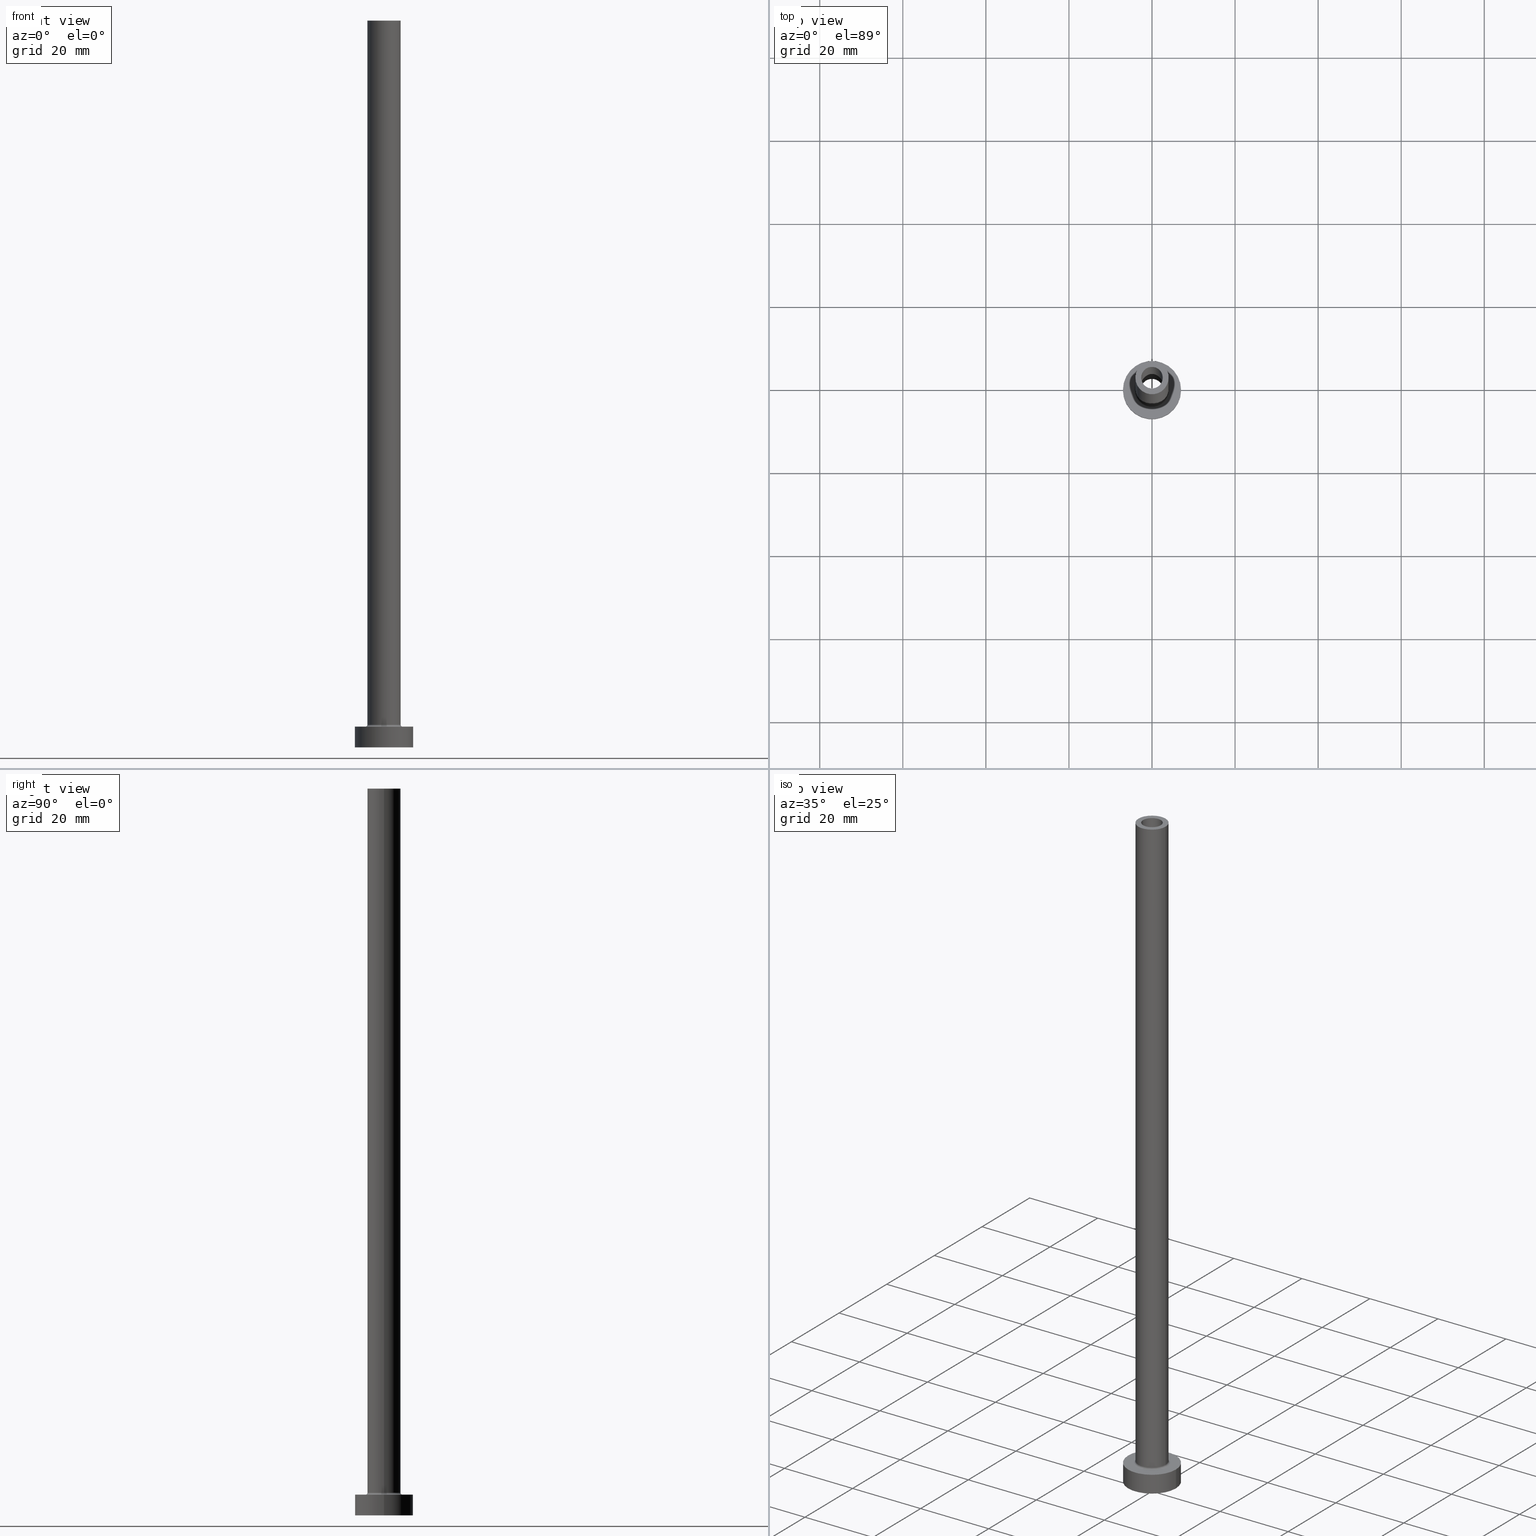
[diagram: canonical four-view strip — front | top / right | iso, engineering-drawing reading convention]
A machine part, canonical four-view strip (front | top / right | iso — engineering-drawing reading convention). The complete STEP part file that produces these views, byte-faithful:
ISO-10303-21;
HEADER;
FILE_DESCRIPTION (( 'STEP AP203' ),
    '1' );
FILE_NAME ('af73.STEP',
    '2023-02-13T16:30:54',
    ( '' ),
    ( '' ),
    'SwSTEP 2.0',
    'SolidWorks 2019',
    '' );
FILE_SCHEMA (( 'CONFIG_CONTROL_DESIGN' ));
ENDSEC;

DATA;
#1 = AXIS2_PLACEMENT_3D ( 'NONE', #310, #350, #413 ) ;
#2 = DIRECTION ( 'NONE',  ( -1.000000000000000000, 0.000000000000000000, 0.000000000000000000 ) ) ;
#3 = CARTESIAN_POINT ( 'NONE',  ( 2.600000000000000089, 3.184081677783118191E-16, 130.0000000000000000 ) ) ;
#4 = DIRECTION ( 'NONE',  ( 0.000000000000000000, 0.000000000000000000, 1.000000000000000000 ) ) ;
#5 = AXIS2_PLACEMENT_3D ( 'NONE', #215, #294, #25 ) ;
#6 = CARTESIAN_POINT ( 'NONE',  ( 0.000000000000000000, 0.000000000000000000, 0.000000000000000000 ) ) ;
#7 = DIRECTION ( 'NONE',  ( 0.000000000000000000, 0.000000000000000000, -1.000000000000000000 ) ) ;
#8 = PERSON ( 'NEUR�EN�', 'NEUR�EN�', 'NEUR�EN�', ('NEUR�EN�'), ('NEUR�EN�'), ('NEUR�EN�') ) ;
#9 = DIRECTION ( 'NONE',  ( 1.000000000000000000, 0.000000000000000000, -0.000000000000000000 ) ) ;
#10 = DIRECTION ( 'NONE',  ( 1.000000000000000000, 0.000000000000000000, 0.000000000000000000 ) ) ;
#11 = CIRCLE ( 'NONE', #108, 4.000000000000000000 ) ;
#12 = CARTESIAN_POINT ( 'NONE',  ( 0.000000000000000000, 0.000000000000000000, 0.000000000000000000 ) ) ;
#13 = ORIENTED_EDGE ( 'NONE', *, *, #424, .F. ) ;
#14 = EDGE_CURVE ( 'NONE', #414, #337, #263, .T. ) ;
#15 = DIRECTION ( 'NONE',  ( -1.000000000000000000, 0.000000000000000000, 0.000000000000000000 ) ) ;
#16 = ORIENTED_EDGE ( 'NONE', *, *, #425, .T. ) ;
#17 = PERSON_AND_ORGANIZATION ( #8, #267 ) ;
#18 = DIRECTION ( 'NONE',  ( 1.000000000000000000, 0.000000000000000000, 0.000000000000000000 ) ) ;
#19 = ORIENTED_EDGE ( 'NONE', *, *, #24, .F. ) ;
#20 = CIRCLE ( 'NONE', #282, 0.5000000000000004441 ) ;
#21 = ADVANCED_BREP_SHAPE_REPRESENTATION ( 'af73', ( #241, #277 ), #412 ) ;
#22 = FACE_OUTER_BOUND ( 'NONE', #385, .T. ) ;
#23 = ORIENTED_EDGE ( 'NONE', *, *, #266, .T. ) ;
#24 = EDGE_CURVE ( 'NONE', #83, #79, #348, .T. ) ;
#25 = DIRECTION ( 'NONE',  ( 1.000000000000000000, 0.000000000000000000, -0.000000000000000000 ) ) ;
#26 = ORIENTED_EDGE ( 'NONE', *, *, #311, .T. ) ;
#27 = APPLICATION_CONTEXT ( 'configuration controlled 3d designs of mechanical parts and assemblies' ) ;
#28 = CARTESIAN_POINT ( 'NONE',  ( 0.000000000000000000, 0.000000000000000000, 130.0000000000000000 ) ) ;
#29 = ORIENTED_EDGE ( 'NONE', *, *, #266, .F. ) ;
#30 = LOCAL_TIME ( 17, 30, 54.00000000000000000, #278 ) ;
#31 = ORIENTED_EDGE ( 'NONE', *, *, #91, .T. ) ;
#32 = EDGE_CURVE ( 'NONE', #237, #90, #438, .T. ) ;
#33 = CYLINDRICAL_SURFACE ( 'NONE', #78, 4.000000000000000000 ) ;
#34 = CALENDAR_DATE ( 2023, 13, 2 ) ;
#35 = CIRCLE ( 'NONE', #137, 4.000000000000000000 ) ;
#36 = FACE_BOUND ( 'NONE', #51, .T. ) ;
#37 = DIRECTION ( 'NONE',  ( 0.000000000000000000, 0.000000000000000000, 1.000000000000000000 ) ) ;
#38 = EDGE_CURVE ( 'NONE', #399, #185, #68, .T. ) ;
#39 = CARTESIAN_POINT ( 'NONE',  ( 0.000000000000000000, 0.000000000000000000, 5.500000000000005329 ) ) ;
#40 = DIRECTION ( 'NONE',  ( 1.000000000000000000, 0.000000000000000000, 0.000000000000000000 ) ) ;
#41 = AXIS2_PLACEMENT_3D ( 'NONE', #323, #250, #248 ) ;
#42 = CIRCLE ( 'NONE', #199, 2.750000000000000000 ) ;
#43 = CARTESIAN_POINT ( 'NONE',  ( 4.500000000000000888, 0.000000000000000000, 5.500000000000005329 ) ) ;
#44 = LINE ( 'NONE', #405, #247 ) ;
#45 = EDGE_CURVE ( 'NONE', #60, #100, #461, .T. ) ;
#46 = DIRECTION ( 'NONE',  ( -1.000000000000000000, 0.000000000000000000, 0.000000000000000000 ) ) ;
#47 = CIRCLE ( 'NONE', #139, 4.500000000000000888 ) ;
#48 = CARTESIAN_POINT ( 'NONE',  ( 2.600000000000000089, 3.184081677783118191E-16, 175.0000000000000284 ) ) ;
#49 = EDGE_LOOP ( 'NONE', ( #297, #230, #219, #216 ) ) ;
#50 = CARTESIAN_POINT ( 'NONE',  ( 0.000000000000000000, 0.000000000000000000, 5.000000000000000000 ) ) ;
#51 = EDGE_LOOP ( 'NONE', ( #144, #156 ) ) ;
#52 = MECHANICAL_CONTEXT ( 'NONE', #27, 'mechanical' ) ;
#53 = CARTESIAN_POINT ( 'NONE',  ( 0.000000000000000000, 0.000000000000000000, 130.0000000000000000 ) ) ;
#54 = VERTEX_POINT ( 'NONE', #397 ) ;
#55 = TOROIDAL_SURFACE ( 'NONE', #149, 4.500000000000000888, 0.5000000000000000000 ) ;
#56 = ADVANCED_FACE ( 'NONE', ( #135, #72 ), #288, .T. ) ;
#57 = CARTESIAN_POINT ( 'NONE',  ( -4.500000000000000888, 5.510910596163089556E-16, 5.500000000000005329 ) ) ;
#58 = ORIENTED_EDGE ( 'NONE', *, *, #168, .T. ) ;
#59 = CALENDAR_DATE ( 2023, 13, 2 ) ;
#60 = VERTEX_POINT ( 'NONE', #173 ) ;
#61 = PERSON_AND_ORGANIZATION ( #8, #267 ) ;
#62 = DIRECTION ( 'NONE',  ( 1.000000000000000000, 0.000000000000000000, 0.000000000000000000 ) ) ;
#63 = CC_DESIGN_DATE_AND_TIME_ASSIGNMENT ( #99, #197, ( #65 ) ) ;
#64 = ORIENTED_EDGE ( 'NONE', *, *, #311, .F. ) ;
#65 = SECURITY_CLASSIFICATION ( '', '', #349 ) ;
#66 = APPROVAL_ROLE ( '' ) ;
#67 = DIRECTION ( 'NONE',  ( -0.000000000000000000, -0.000000000000000000, -1.000000000000000000 ) ) ;
#68 = LINE ( 'NONE', #170, #121 ) ;
#69 = ADVANCED_FACE ( 'NONE', ( #136, #109 ), #202, .T. ) ;
#70 = APPROVAL_PERSON_ORGANIZATION ( #17, #343, #66 ) ;
#71 = DIRECTION ( 'NONE',  ( 0.000000000000000000, 0.000000000000000000, 1.000000000000000000 ) ) ;
#72 = FACE_OUTER_BOUND ( 'NONE', #106, .T. ) ;
#73 = CIRCLE ( 'NONE', #204, 2.600000000000000089 ) ;
#74 = CARTESIAN_POINT ( 'NONE',  ( 0.000000000000000000, 0.000000000000000000, 130.0000000000000000 ) ) ;
#75 = CARTESIAN_POINT ( 'NONE',  ( 0.000000000000000000, 0.000000000000000000, 175.0000000000000284 ) ) ;
#76 = CARTESIAN_POINT ( 'NONE',  ( -4.000000000000000000, 0.000000000000000000, 175.0000000000000284 ) ) ;
#77 = DIRECTION ( 'NONE',  ( -0.000000000000000000, -0.000000000000000000, -1.000000000000000000 ) ) ;
#78 = AXIS2_PLACEMENT_3D ( 'NONE', #423, #130, #97 ) ;
#79 = VERTEX_POINT ( 'NONE', #328 ) ;
#80 = CARTESIAN_POINT ( 'NONE',  ( 0.000000000000000000, 0.000000000000000000, 175.0000000000000284 ) ) ;
#81 = ORIENTED_EDGE ( 'NONE', *, *, #102, .T. ) ;
#82 =( NAMED_UNIT ( * ) PLANE_ANGLE_UNIT ( ) SI_UNIT ( $, .RADIAN. ) );
#83 = VERTEX_POINT ( 'NONE', #286 ) ;
#84 = ADVANCED_FACE ( 'NONE', ( #292 ), #356, .F. ) ;
#85 = DIRECTION ( 'NONE',  ( -0.000000000000000000, -0.000000000000000000, -1.000000000000000000 ) ) ;
#86 = DIRECTION ( 'NONE',  ( -1.000000000000000000, 1.224646799147351482E-16, 0.000000000000000000 ) ) ;
#87 = EDGE_LOOP ( 'NONE', ( #344, #81, #182, #31 ) ) ;
#88 = AXIS2_PLACEMENT_3D ( 'NONE', #333, #440, #15 ) ;
#89 = LINE ( 'NONE', #279, #376 ) ;
#90 = VERTEX_POINT ( 'NONE', #327 ) ;
#91 = EDGE_CURVE ( 'NONE', #79, #145, #314, .T. ) ;
#92 = EDGE_LOOP ( 'NONE', ( #334, #289 ) ) ;
#93 = COORDINATED_UNIVERSAL_TIME_OFFSET ( 1, 0, .AHEAD. ) ;
#94 = VERTEX_POINT ( 'NONE', #167 ) ;
#95 = CIRCLE ( 'NONE', #220, 2.600000000000000089 ) ;
#96 = APPROVAL_DATE_TIME ( #421, #371 ) ;
#97 = DIRECTION ( 'NONE',  ( -1.000000000000000000, 0.000000000000000000, 0.000000000000000000 ) ) ;
#98 = DIRECTION ( 'NONE',  ( 0.000000000000000000, 0.000000000000000000, -1.000000000000000000 ) ) ;
#99 = DATE_AND_TIME ( #34, #443 ) ;
#100 = VERTEX_POINT ( 'NONE', #430 ) ;
#101 = CC_DESIGN_APPROVAL ( #343, ( #146 ) ) ;
#102 = EDGE_CURVE ( 'NONE', #407, #83, #162, .T. ) ;
#103 = DIRECTION ( 'NONE',  ( 1.000000000000000000, 0.000000000000000000, 0.000000000000000000 ) ) ;
#104 = AXIS2_PLACEMENT_3D ( 'NONE', #138, #322, #395 ) ;
#105 = CARTESIAN_POINT ( 'NONE',  ( 7.000000000000000000, 8.572527594031473190E-16, 5.000000000000000000 ) ) ;
#106 = EDGE_LOOP ( 'NONE', ( #254, #411 ) ) ;
#107 = CALENDAR_DATE ( 2023, 13, 2 ) ;
#108 = AXIS2_PLACEMENT_3D ( 'NONE', #353, #37, #256 ) ;
#109 = FACE_OUTER_BOUND ( 'NONE', #189, .T. ) ;
#110 = PERSON_AND_ORGANIZATION_ROLE ( 'design_owner' ) ;
#111 = DIRECTION ( 'NONE',  ( -0.000000000000000000, -0.000000000000000000, -1.000000000000000000 ) ) ;
#112 = EDGE_CURVE ( 'NONE', #451, #54, #35, .T. ) ;
#113 = FACE_OUTER_BOUND ( 'NONE', #342, .T. ) ;
#114 = EDGE_LOOP ( 'NONE', ( #441, #118 ) ) ;
#115 = LINE ( 'NONE', #48, #238 ) ;
#116 = ORIENTED_EDGE ( 'NONE', *, *, #246, .T. ) ;
#117 = DIRECTION ( 'NONE',  ( 0.000000000000000000, 0.000000000000000000, -1.000000000000000000 ) ) ;
#118 = ORIENTED_EDGE ( 'NONE', *, *, #352, .T. ) ;
#119 = DIRECTION ( 'NONE',  ( 1.000000000000000000, 0.000000000000000000, 0.000000000000000000 ) ) ;
#120 = EDGE_LOOP ( 'NONE', ( #29, #375, #287, #304 ) ) ;
#121 = VECTOR ( 'NONE', #360, 1000.000000000000000 ) ;
#122 = DIRECTION ( 'NONE',  ( 1.000000000000000000, 0.000000000000000000, 0.000000000000000000 ) ) ;
#123 = AXIS2_PLACEMENT_3D ( 'NONE', #252, #85, #409 ) ;
#124 = CALENDAR_DATE ( 2023, 13, 2 ) ;
#125 = ORIENTED_EDGE ( 'NONE', *, *, #164, .T. ) ;
#126 = PERSON_AND_ORGANIZATION ( #8, #267 ) ;
#127 = DIRECTION ( 'NONE',  ( 1.000000000000000000, 0.000000000000000000, -0.000000000000000000 ) ) ;
#128 = DATE_TIME_ROLE ( 'creation_date' ) ;
#129 = APPROVAL_DATE_TIME ( #345, #343 ) ;
#130 = DIRECTION ( 'NONE',  ( -0.000000000000000000, -0.000000000000000000, -1.000000000000000000 ) ) ;
#131 = DIRECTION ( 'NONE',  ( 1.000000000000000000, 0.000000000000000000, 0.000000000000000000 ) ) ;
#132 = DIRECTION ( 'NONE',  ( 0.000000000000000000, 0.000000000000000000, 1.000000000000000000 ) ) ;
#133 = CC_DESIGN_PERSON_AND_ORGANIZATION_ASSIGNMENT ( #232, #457, ( #427 ) ) ;
#134 = APPROVAL_PERSON_ORGANIZATION ( #153, #402, #449 ) ;
#135 = FACE_BOUND ( 'NONE', #92, .T. ) ;
#136 = FACE_BOUND ( 'NONE', #269, .T. ) ;
#137 = AXIS2_PLACEMENT_3D ( 'NONE', #355, #243, #203 ) ;
#138 = CARTESIAN_POINT ( 'NONE',  ( 0.000000000000000000, 0.000000000000000000, 137.7781745930520287 ) ) ;
#139 = AXIS2_PLACEMENT_3D ( 'NONE', #50, #369, #154 ) ;
#140 = CC_DESIGN_APPROVAL ( #402, ( #65 ) ) ;
#141 = DIRECTION ( 'NONE',  ( 1.000000000000000000, 0.000000000000000000, -0.000000000000000000 ) ) ;
#142 = EDGE_CURVE ( 'NONE', #179, #382, #408, .T. ) ;
#143 = DIRECTION ( 'NONE',  ( -1.000000000000000000, 0.000000000000000000, 0.000000000000000000 ) ) ;
#144 = ORIENTED_EDGE ( 'NONE', *, *, #91, .F. ) ;
#145 = VERTEX_POINT ( 'NONE', #428 ) ;
#146 = PRODUCT_DEFINITION ( 'NEZN�M�', '', #427, #264 ) ;
#147 = DIRECTION ( 'NONE',  ( 0.000000000000000000, 0.000000000000000000, 1.000000000000000000 ) ) ;
#148 = CARTESIAN_POINT ( 'NONE',  ( 0.000000000000000000, 0.000000000000000000, 5.500000000000005329 ) ) ;
#149 = AXIS2_PLACEMENT_3D ( 'NONE', #148, #445, #131 ) ;
#150 = ORIENTED_EDGE ( 'NONE', *, *, #102, .F. ) ;
#151 = CARTESIAN_POINT ( 'NONE',  ( 0.000000000000000000, 0.000000000000000000, 130.0000000000000000 ) ) ;
#152 = ORIENTED_EDGE ( 'NONE', *, *, #223, .F. ) ;
#153 = PERSON_AND_ORGANIZATION ( #8, #267 ) ;
#154 = DIRECTION ( 'NONE',  ( 1.000000000000000000, 0.000000000000000000, 0.000000000000000000 ) ) ;
#155 = ORIENTED_EDGE ( 'NONE', *, *, #326, .F. ) ;
#156 = ORIENTED_EDGE ( 'NONE', *, *, #239, .F. ) ;
#157 = ADVANCED_FACE ( 'NONE', ( #284 ), #364, .F. ) ;
#158 = AXIS2_PLACEMENT_3D ( 'NONE', #12, #403, #186 ) ;
#159 = FACE_OUTER_BOUND ( 'NONE', #456, .T. ) ;
#160 = DIRECTION ( 'NONE',  ( 1.000000000000000000, 0.000000000000000000, 0.000000000000000000 ) ) ;
#161 = APPROVAL_STATUS ( 'not_yet_approved' ) ;
#162 = CIRCLE ( 'NONE', #218, 2.750000000000000000 ) ;
#163 = COORDINATED_UNIVERSAL_TIME_OFFSET ( 1, 0, .AHEAD. ) ;
#164 = EDGE_CURVE ( 'NONE', #54, #100, #391, .T. ) ;
#165 = CYLINDRICAL_SURFACE ( 'NONE', #255, 2.600000000000000089 ) ;
#166 = ORIENTED_EDGE ( 'NONE', *, *, #239, .T. ) ;
#167 = CARTESIAN_POINT ( 'NONE',  ( 2.600000000000000089, 3.184081677783118191E-16, 175.0000000000000284 ) ) ;
#168 = EDGE_CURVE ( 'NONE', #100, #60, #383, .T. ) ;
#169 = VECTOR ( 'NONE', #98, 1000.000000000000000 ) ;
#170 = CARTESIAN_POINT ( 'NONE',  ( -2.600000000000000089, 0.000000000000000000, 175.0000000000000284 ) ) ;
#171 = CIRCLE ( 'NONE', #432, 0.5000000000000004441 ) ;
#172 = DIRECTION ( 'NONE',  ( 0.000000000000000000, -1.000000000000000000, 0.000000000000000000 ) ) ;
#173 = CARTESIAN_POINT ( 'NONE',  ( -4.000000000000000000, 0.000000000000000000, 5.500000000000005329 ) ) ;
#174 = EDGE_CURVE ( 'NONE', #100, #90, #20, .T. ) ;
#175 = DIRECTION ( 'NONE',  ( 0.000000000000000000, 0.000000000000000000, 1.000000000000000000 ) ) ;
#176 = APPLICATION_PROTOCOL_DEFINITION ( 'international standard', 'config_control_design', 1994, #27 ) ;
#177 = LINE ( 'NONE', #331, #394 ) ;
#178 = CARTESIAN_POINT ( 'NONE',  ( 0.000000000000000000, 0.000000000000000000, 5.000000000000000000 ) ) ;
#179 = VERTEX_POINT ( 'NONE', #105 ) ;
#180 = PRODUCT_RELATED_PRODUCT_CATEGORY ( 'detail', '', ( #198 ) ) ;
#181 = CARTESIAN_POINT ( 'NONE',  ( -7.000000000000000000, 0.000000000000000000, 0.000000000000000000 ) ) ;
#182 = ORIENTED_EDGE ( 'NONE', *, *, #24, .T. ) ;
#183 = AXIS2_PLACEMENT_3D ( 'NONE', #178, #406, #410 ) ;
#184 = CYLINDRICAL_SURFACE ( 'NONE', #298, 2.750000000000000000 ) ;
#185 = VERTEX_POINT ( 'NONE', #245 ) ;
#186 = DIRECTION ( 'NONE',  ( 1.000000000000000000, 0.000000000000000000, 0.000000000000000000 ) ) ;
#187 = ORIENTED_EDGE ( 'NONE', *, *, #32, .F. ) ;
#188 = EDGE_CURVE ( 'NONE', #179, #414, #260, .T. ) ;
#189 = EDGE_LOOP ( 'NONE', ( #222, #258 ) ) ;
#190 = AXIS2_PLACEMENT_3D ( 'NONE', #193, #313, #160 ) ;
#191 = PERSON_AND_ORGANIZATION ( #8, #267 ) ;
#192 = CARTESIAN_POINT ( 'NONE',  ( -7.000000000000000000, 0.000000000000000000, 5.000000000000000000 ) ) ;
#193 = CARTESIAN_POINT ( 'NONE',  ( 0.000000000000000000, 0.000000000000000000, 0.000000000000000000 ) ) ;
#194 = FACE_OUTER_BOUND ( 'NONE', #49, .T. ) ;
#195 = UNCERTAINTY_MEASURE_WITH_UNIT (LENGTH_MEASURE( 1.000000000000000082E-05 ), #377, 'distance_accuracy_value', 'NONE');
#196 = ORIENTED_EDGE ( 'NONE', *, *, #38, .F. ) ;
#197 = DATE_TIME_ROLE ( 'classification_date' ) ;
#198 = PRODUCT ( 'af73', 'af73', '', ( #52 ) ) ;
#199 = AXIS2_PLACEMENT_3D ( 'NONE', #339, #77, #122 ) ;
#200 = CC_DESIGN_PERSON_AND_ORGANIZATION_ASSIGNMENT ( #433, #110, ( #198 ) ) ;
#201 = CARTESIAN_POINT ( 'NONE',  ( 0.000000000000000000, 0.000000000000000000, 5.000000000000000000 ) ) ;
#202 = PLANE ( 'NONE',  #335 ) ;
#203 = DIRECTION ( 'NONE',  ( 1.000000000000000000, 0.000000000000000000, 0.000000000000000000 ) ) ;
#204 = AXIS2_PLACEMENT_3D ( 'NONE', #80, #378, #341 ) ;
#205 = CARTESIAN_POINT ( 'NONE',  ( 0.000000000000000000, 0.000000000000000000, 175.0000000000000284 ) ) ;
#206 = ADVANCED_FACE ( 'NONE', ( #22 ), #221, .T. ) ;
#207 = DIRECTION ( 'NONE',  ( 1.000000000000000000, 0.000000000000000000, 0.000000000000000000 ) ) ;
#208 = FACE_OUTER_BOUND ( 'NONE', #120, .T. ) ;
#209 = VECTOR ( 'NONE', #111, 1000.000000000000000 ) ;
#210 = APPROVAL_PERSON_ORGANIZATION ( #61, #371, #454 ) ;
#211 = DIRECTION ( 'NONE',  ( 0.000000000000000000, 0.000000000000000000, -1.000000000000000000 ) ) ;
#212 = ADVANCED_FACE ( 'NONE', ( #208 ), #374, .F. ) ;
#213 = CYLINDRICAL_SURFACE ( 'NONE', #309, 4.000000000000000000 ) ;
#214 = ORIENTED_EDGE ( 'NONE', *, *, #174, .F. ) ;
#215 = CARTESIAN_POINT ( 'NONE',  ( 0.000000000000000000, 0.000000000000000000, 130.0000000000000000 ) ) ;
#216 = ORIENTED_EDGE ( 'NONE', *, *, #45, .T. ) ;
#217 =( NAMED_UNIT ( * ) SI_UNIT ( $, .STERADIAN. ) SOLID_ANGLE_UNIT ( ) );
#218 = AXIS2_PLACEMENT_3D ( 'NONE', #74, #132, #207 ) ;
#219 = ORIENTED_EDGE ( 'NONE', *, *, #326, .T. ) ;
#220 = AXIS2_PLACEMENT_3D ( 'NONE', #151, #296, #18 ) ;
#221 = CYLINDRICAL_SURFACE ( 'NONE', #183, 7.000000000000000000 ) ;
#222 = ORIENTED_EDGE ( 'NONE', *, *, #424, .T. ) ;
#223 = EDGE_CURVE ( 'NONE', #60, #237, #171, .T. ) ;
#224 = CARTESIAN_POINT ( 'NONE',  ( -2.600000000000000089, 0.000000000000000000, 175.0000000000000284 ) ) ;
#225 = ORIENTED_EDGE ( 'NONE', *, *, #362, .T. ) ;
#226 = COORDINATED_UNIVERSAL_TIME_OFFSET ( 1, 0, .AHEAD. ) ;
#227 = ORIENTED_EDGE ( 'NONE', *, *, #14, .F. ) ;
#228 = AXIS2_PLACEMENT_3D ( 'NONE', #234, #387, #318 ) ;
#229 = EDGE_CURVE ( 'NONE', #337, #414, #290, .T. ) ;
#230 = ORIENTED_EDGE ( 'NONE', *, *, #112, .F. ) ;
#231 = VECTOR ( 'NONE', #450, 1000.000000000000000 ) ;
#232 = PERSON_AND_ORGANIZATION ( #8, #267 ) ;
#233 = CARTESIAN_POINT ( 'NONE',  ( 0.000000000000000000, 0.000000000000000000, 5.000000000000000000 ) ) ;
#234 = CARTESIAN_POINT ( 'NONE',  ( 0.000000000000000000, 0.000000000000000000, 5.000000000000000000 ) ) ;
#235 = ORIENTED_EDGE ( 'NONE', *, *, #293, .F. ) ;
#236 = CLOSED_SHELL ( 'NONE', ( #396, #84, #332, #320, #452, #206, #69, #388, #415, #56, #157, #273, #302, #212 ) ) ;
#237 = VERTEX_POINT ( 'NONE', #447 ) ;
#238 = VECTOR ( 'NONE', #117, 1000.000000000000000 ) ;
#239 = EDGE_CURVE ( 'NONE', #145, #79, #42, .T. ) ;
#240 = DIRECTION ( 'NONE',  ( -0.000000000000000000, -0.000000000000000000, -1.000000000000000000 ) ) ;
#241 = MANIFOLD_SOLID_BREP ( 'Odebrat vysunut�m4', #236 ) ;
#242 = SHAPE_DEFINITION_REPRESENTATION ( #366, #21 ) ;
#243 = DIRECTION ( 'NONE',  ( 0.000000000000000000, 0.000000000000000000, 1.000000000000000000 ) ) ;
#244 = ORIENTED_EDGE ( 'NONE', *, *, #168, .F. ) ;
#245 = CARTESIAN_POINT ( 'NONE',  ( -2.600000000000000089, 0.000000000000000000, 130.0000000000000000 ) ) ;
#246 = EDGE_CURVE ( 'NONE', #83, #407, #330, .T. ) ;
#247 = VECTOR ( 'NONE', #211, 1000.000000000000000 ) ;
#248 = DIRECTION ( 'NONE',  ( 1.000000000000000000, 0.000000000000000000, 0.000000000000000000 ) ) ;
#249 = FACE_OUTER_BOUND ( 'NONE', #295, .T. ) ;
#250 = DIRECTION ( 'NONE',  ( 0.000000000000000000, 0.000000000000000000, 1.000000000000000000 ) ) ;
#251 = CC_DESIGN_PERSON_AND_ORGANIZATION_ASSIGNMENT ( #419, #312, ( #146 ) ) ;
#252 = CARTESIAN_POINT ( 'NONE',  ( 0.000000000000000000, 0.000000000000000000, 5.000000000000000000 ) ) ;
#253 = FACE_OUTER_BOUND ( 'NONE', #370, .T. ) ;
#254 = ORIENTED_EDGE ( 'NONE', *, *, #112, .T. ) ;
#255 = AXIS2_PLACEMENT_3D ( 'NONE', #274, #455, #2 ) ;
#256 = DIRECTION ( 'NONE',  ( 1.000000000000000000, 0.000000000000000000, 0.000000000000000000 ) ) ;
#257 = FACE_OUTER_BOUND ( 'NONE', #404, .T. ) ;
#258 = ORIENTED_EDGE ( 'NONE', *, *, #142, .T. ) ;
#259 = CYLINDRICAL_SURFACE ( 'NONE', #123, 7.000000000000000000 ) ;
#260 = LINE ( 'NONE', #306, #231 ) ;
#261 = ORIENTED_EDGE ( 'NONE', *, *, #425, .F. ) ;
#262 = FACE_BOUND ( 'NONE', #114, .T. ) ;
#263 = CIRCLE ( 'NONE', #190, 7.000000000000000000 ) ;
#264 = DESIGN_CONTEXT ( 'detailed design', #324, 'design' ) ;
#265 = ORIENTED_EDGE ( 'NONE', *, *, #188, .T. ) ;
#266 = EDGE_CURVE ( 'NONE', #94, #379, #115, .T. ) ;
#267 = ORGANIZATION ( 'NEUR�EN�', 'NEUR�EN�', '' ) ;
#268 = DIRECTION ( 'NONE',  ( 0.000000000000000000, 0.000000000000000000, 1.000000000000000000 ) ) ;
#269 = EDGE_LOOP ( 'NONE', ( #26, #301 ) ) ;
#270 = DIRECTION ( 'NONE',  ( 0.000000000000000000, 0.000000000000000000, 1.000000000000000000 ) ) ;
#271 = ORIENTED_EDGE ( 'NONE', *, *, #142, .F. ) ;
#272 = PERSON_AND_ORGANIZATION_ROLE ( 'classification_officer' ) ;
#273 = ADVANCED_FACE ( 'NONE', ( #300 ), #184, .F. ) ;
#274 = CARTESIAN_POINT ( 'NONE',  ( 0.000000000000000000, 0.000000000000000000, 175.0000000000000284 ) ) ;
#275 = AXIS2_PLACEMENT_3D ( 'NONE', #361, #175, #40 ) ;
#276 = CARTESIAN_POINT ( 'NONE',  ( -2.750000000000000000, 0.000000000000000000, 137.7781745930520287 ) ) ;
#277 = AXIS2_PLACEMENT_3D ( 'NONE', #373, #147, #299 ) ;
#278 = COORDINATED_UNIVERSAL_TIME_OFFSET ( 1, 0, .AHEAD. ) ;
#279 = CARTESIAN_POINT ( 'NONE',  ( -7.000000000000000000, 0.000000000000000000, 5.000000000000000000 ) ) ;
#280 = COORDINATED_UNIVERSAL_TIME_OFFSET ( 1, 0, .AHEAD. ) ;
#281 = EDGE_CURVE ( 'NONE', #94, #399, #73, .T. ) ;
#282 = AXIS2_PLACEMENT_3D ( 'NONE', #43, #172, #7 ) ;
#283 = CC_DESIGN_APPROVAL ( #371, ( #427 ) ) ;
#284 = FACE_OUTER_BOUND ( 'NONE', #368, .T. ) ;
#285 = CC_DESIGN_PERSON_AND_ORGANIZATION_ASSIGNMENT ( #126, #272, ( #65 ) ) ;
#286 = CARTESIAN_POINT ( 'NONE',  ( -2.750000000000000000, 0.000000000000000000, 130.0000000000000000 ) ) ;
#287 = ORIENTED_EDGE ( 'NONE', *, *, #38, .T. ) ;
#288 = PLANE ( 'NONE',  #315 ) ;
#289 = ORIENTED_EDGE ( 'NONE', *, *, #281, .F. ) ;
#290 = CIRCLE ( 'NONE', #158, 7.000000000000000000 ) ;
#291 = CC_DESIGN_SECURITY_CLASSIFICATION ( #65, ( #427 ) ) ;
#292 = FACE_OUTER_BOUND ( 'NONE', #380, .T. ) ;
#293 = EDGE_CURVE ( 'NONE', #185, #379, #95, .T. ) ;
#294 = DIRECTION ( 'NONE',  ( 0.000000000000000000, 0.000000000000000000, 1.000000000000000000 ) ) ;
#295 = EDGE_LOOP ( 'NONE', ( #271, #265, #435, #261 ) ) ;
#296 = DIRECTION ( 'NONE',  ( 0.000000000000000000, 0.000000000000000000, 1.000000000000000000 ) ) ;
#297 = ORIENTED_EDGE ( 'NONE', *, *, #164, .F. ) ;
#298 = AXIS2_PLACEMENT_3D ( 'NONE', #367, #363, #143 ) ;
#299 = DIRECTION ( 'NONE',  ( 1.000000000000000000, 0.000000000000000000, 0.000000000000000000 ) ) ;
#300 = FACE_OUTER_BOUND ( 'NONE', #87, .T. ) ;
#301 = ORIENTED_EDGE ( 'NONE', *, *, #32, .T. ) ;
#302 = ADVANCED_FACE ( 'NONE', ( #262, #257 ), #303, .F. ) ;
#303 = PLANE ( 'NONE',  #5 ) ;
#304 = ORIENTED_EDGE ( 'NONE', *, *, #352, .F. ) ;
#305 = APPROVAL_STATUS ( 'not_yet_approved' ) ;
#306 = CARTESIAN_POINT ( 'NONE',  ( 7.000000000000000000, 8.572527594031473190E-16, 5.000000000000000000 ) ) ;
#307 = ORIENTED_EDGE ( 'NONE', *, *, #45, .F. ) ;
#308 = DATE_AND_TIME ( #59, #365 ) ;
#309 = AXIS2_PLACEMENT_3D ( 'NONE', #75, #398, #46 ) ;
#310 = CARTESIAN_POINT ( 'NONE',  ( 0.000000000000000000, 0.000000000000000000, 175.0000000000000284 ) ) ;
#311 = EDGE_CURVE ( 'NONE', #90, #237, #47, .T. ) ;
#312 = PERSON_AND_ORGANIZATION_ROLE ( 'creator' ) ;
#313 = DIRECTION ( 'NONE',  ( 0.000000000000000000, 0.000000000000000000, 1.000000000000000000 ) ) ;
#314 = CIRCLE ( 'NONE', #372, 2.750000000000000000 ) ;
#315 = AXIS2_PLACEMENT_3D ( 'NONE', #205, #71, #9 ) ;
#316 = FACE_OUTER_BOUND ( 'NONE', #459, .T. ) ;
#317 = AXIS2_PLACEMENT_3D ( 'NONE', #28, #381, #62 ) ;
#318 = DIRECTION ( 'NONE',  ( 1.000000000000000000, 0.000000000000000000, 0.000000000000000000 ) ) ;
#319 = DIRECTION ( 'NONE',  ( 0.000000000000000000, 0.000000000000000000, 1.000000000000000000 ) ) ;
#320 = ADVANCED_FACE ( 'NONE', ( #253 ), #213, .T. ) ;
#321 = APPROVAL_DATE_TIME ( #429, #402 ) ;
#322 = DIRECTION ( 'NONE',  ( 0.000000000000000000, 0.000000000000000000, -1.000000000000000000 ) ) ;
#323 = CARTESIAN_POINT ( 'NONE',  ( 0.000000000000000000, 0.000000000000000000, 5.500000000000005329 ) ) ;
#324 = APPLICATION_CONTEXT ( 'configuration controlled 3d designs of mechanical parts and assemblies' ) ;
#325 = LOCAL_TIME ( 17, 30, 54.00000000000000000, #280 ) ;
#326 = EDGE_CURVE ( 'NONE', #451, #60, #177, .T. ) ;
#327 = CARTESIAN_POINT ( 'NONE',  ( 4.500000000000000888, 0.000000000000000000, 5.000000000000002665 ) ) ;
#328 = CARTESIAN_POINT ( 'NONE',  ( -2.750000000000000000, 0.000000000000000000, 0.000000000000000000 ) ) ;
#329 = CARTESIAN_POINT ( 'NONE',  ( 0.000000000000000000, 0.000000000000000000, 5.500000000000005329 ) ) ;
#330 = CIRCLE ( 'NONE', #354, 2.750000000000000000 ) ;
#331 = CARTESIAN_POINT ( 'NONE',  ( -4.000000000000000000, 0.000000000000000000, 175.0000000000000284 ) ) ;
#332 = ADVANCED_FACE ( 'NONE', ( #113 ), #55, .F. ) ;
#333 = CARTESIAN_POINT ( 'NONE',  ( 0.000000000000000000, 0.000000000000000000, 175.0000000000000284 ) ) ;
#334 = ORIENTED_EDGE ( 'NONE', *, *, #362, .F. ) ;
#335 = AXIS2_PLACEMENT_3D ( 'NONE', #201, #393, #141 ) ;
#336 = DIRECTION ( 'NONE',  ( 1.224646799147353207E-16, 1.000000000000000000, -0.000000000000000000 ) ) ;
#337 = VERTEX_POINT ( 'NONE', #181 ) ;
#338 = AXIS2_PLACEMENT_3D ( 'NONE', #233, #319, #386 ) ;
#339 = CARTESIAN_POINT ( 'NONE',  ( 0.000000000000000000, 0.000000000000000000, 0.000000000000000000 ) ) ;
#340 = ORIENTED_EDGE ( 'NONE', *, *, #188, .F. ) ;
#341 = DIRECTION ( 'NONE',  ( 1.000000000000000000, 0.000000000000000000, 0.000000000000000000 ) ) ;
#342 = EDGE_LOOP ( 'NONE', ( #307, #389, #64, #214 ) ) ;
#343 = APPROVAL ( #444, 'NEUR�EN�' ) ;
#344 = ORIENTED_EDGE ( 'NONE', *, *, #439, .F. ) ;
#345 = DATE_AND_TIME ( #460, #453 ) ;
#346 = CIRCLE ( 'NONE', #338, 7.000000000000000000 ) ;
#347 = CARTESIAN_POINT ( 'NONE',  ( 0.000000000000000000, 0.000000000000000000, 0.000000000000000000 ) ) ;
#348 = LINE ( 'NONE', #276, #169 ) ;
#349 = SECURITY_CLASSIFICATION_LEVEL ( 'unclassified' ) ;
#350 = DIRECTION ( 'NONE',  ( 0.000000000000000000, 0.000000000000000000, 1.000000000000000000 ) ) ;
#351 = ORIENTED_EDGE ( 'NONE', *, *, #174, .T. ) ;
#352 = EDGE_CURVE ( 'NONE', #379, #185, #422, .T. ) ;
#353 = CARTESIAN_POINT ( 'NONE',  ( 0.000000000000000000, 0.000000000000000000, 175.0000000000000284 ) ) ;
#354 = AXIS2_PLACEMENT_3D ( 'NONE', #53, #268, #119 ) ;
#355 = CARTESIAN_POINT ( 'NONE',  ( 0.000000000000000000, 0.000000000000000000, 175.0000000000000284 ) ) ;
#356 = CYLINDRICAL_SURFACE ( 'NONE', #104, 2.750000000000000000 ) ;
#357 = CC_DESIGN_PERSON_AND_ORGANIZATION_ASSIGNMENT ( #191, #416, ( #427 ) ) ;
#358 = DIRECTION ( 'NONE',  ( 1.000000000000000000, 0.000000000000000000, 0.000000000000000000 ) ) ;
#359 = CIRCLE ( 'NONE', #1, 2.600000000000000089 ) ;
#360 = DIRECTION ( 'NONE',  ( 0.000000000000000000, 0.000000000000000000, -1.000000000000000000 ) ) ;
#361 = CARTESIAN_POINT ( 'NONE',  ( 0.000000000000000000, 0.000000000000000000, 5.000000000000000000 ) ) ;
#362 = EDGE_CURVE ( 'NONE', #399, #94, #359, .T. ) ;
#363 = DIRECTION ( 'NONE',  ( 0.000000000000000000, 0.000000000000000000, -1.000000000000000000 ) ) ;
#364 = TOROIDAL_SURFACE ( 'NONE', #426, 4.500000000000000888, 0.5000000000000000000 ) ;
#365 = LOCAL_TIME ( 17, 30, 54.00000000000000000, #226 ) ;
#366 = PRODUCT_DEFINITION_SHAPE ( 'NONE', 'NONE',  #146 ) ;
#367 = CARTESIAN_POINT ( 'NONE',  ( 0.000000000000000000, 0.000000000000000000, 137.7781745930520287 ) ) ;
#368 = EDGE_LOOP ( 'NONE', ( #152, #244, #351, #187 ) ) ;
#369 = DIRECTION ( 'NONE',  ( -0.000000000000000000, -0.000000000000000000, -1.000000000000000000 ) ) ;
#370 = EDGE_LOOP ( 'NONE', ( #437, #125, #58, #155 ) ) ;
#371 = APPROVAL ( #161, 'NEUR�EN�' ) ;
#372 = AXIS2_PLACEMENT_3D ( 'NONE', #6, #240, #103 ) ;
#373 = CARTESIAN_POINT ( 'NONE',  ( 0.000000000000000000, 0.000000000000000000, 0.000000000000000000 ) ) ;
#374 = CYLINDRICAL_SURFACE ( 'NONE', #88, 2.600000000000000089 ) ;
#375 = ORIENTED_EDGE ( 'NONE', *, *, #281, .T. ) ;
#376 = VECTOR ( 'NONE', #67, 1000.000000000000000 ) ;
#377 =( LENGTH_UNIT ( ) NAMED_UNIT ( * ) SI_UNIT ( .MILLI., .METRE. ) );
#378 = DIRECTION ( 'NONE',  ( 0.000000000000000000, 0.000000000000000000, 1.000000000000000000 ) ) ;
#379 = VERTEX_POINT ( 'NONE', #3 ) ;
#380 = EDGE_LOOP ( 'NONE', ( #116, #418, #166, #19 ) ) ;
#381 = DIRECTION ( 'NONE',  ( 0.000000000000000000, 0.000000000000000000, 1.000000000000000000 ) ) ;
#382 = VERTEX_POINT ( 'NONE', #192 ) ;
#383 = CIRCLE ( 'NONE', #442, 4.000000000000000000 ) ;
#384 = CARTESIAN_POINT ( 'NONE',  ( 7.000000000000000000, 8.572527594031473190E-16, 0.000000000000000000 ) ) ;
#385 = EDGE_LOOP ( 'NONE', ( #340, #13, #16, #446 ) ) ;
#386 = DIRECTION ( 'NONE',  ( 1.000000000000000000, 0.000000000000000000, 0.000000000000000000 ) ) ;
#387 = DIRECTION ( 'NONE',  ( -0.000000000000000000, -0.000000000000000000, -1.000000000000000000 ) ) ;
#388 = ADVANCED_FACE ( 'NONE', ( #36, #159 ), #458, .F. ) ;
#389 = ORIENTED_EDGE ( 'NONE', *, *, #223, .T. ) ;
#390 = CC_DESIGN_DATE_AND_TIME_ASSIGNMENT ( #308, #128, ( #146 ) ) ;
#391 = LINE ( 'NONE', #434, #209 ) ;
#392 = DIRECTION ( 'NONE',  ( 0.000000000000000000, 0.000000000000000000, 1.000000000000000000 ) ) ;
#393 = DIRECTION ( 'NONE',  ( 0.000000000000000000, 0.000000000000000000, 1.000000000000000000 ) ) ;
#394 = VECTOR ( 'NONE', #436, 1000.000000000000000 ) ;
#395 = DIRECTION ( 'NONE',  ( -1.000000000000000000, 0.000000000000000000, 0.000000000000000000 ) ) ;
#396 = ADVANCED_FACE ( 'NONE', ( #316 ), #165, .F. ) ;
#397 = CARTESIAN_POINT ( 'NONE',  ( 4.000000000000000000, 4.898587196589412829E-16, 175.0000000000000284 ) ) ;
#398 = DIRECTION ( 'NONE',  ( -0.000000000000000000, -0.000000000000000000, -1.000000000000000000 ) ) ;
#399 = VERTEX_POINT ( 'NONE', #224 ) ;
#400 = AXIS2_PLACEMENT_3D ( 'NONE', #347, #270, #127 ) ;
#401 = APPLICATION_PROTOCOL_DEFINITION ( 'international standard', 'config_control_design', 1994, #324 ) ;
#402 = APPROVAL ( #305, 'NEUR�EN�' ) ;
#403 = DIRECTION ( 'NONE',  ( 0.000000000000000000, 0.000000000000000000, 1.000000000000000000 ) ) ;
#404 = EDGE_LOOP ( 'NONE', ( #448, #150 ) ) ;
#405 = CARTESIAN_POINT ( 'NONE',  ( 2.750000000000000000, 3.367778697655221012E-16, 137.7781745930520287 ) ) ;
#406 = DIRECTION ( 'NONE',  ( -0.000000000000000000, -0.000000000000000000, -1.000000000000000000 ) ) ;
#407 = VERTEX_POINT ( 'NONE', #417 ) ;
#408 = CIRCLE ( 'NONE', #275, 7.000000000000000000 ) ;
#409 = DIRECTION ( 'NONE',  ( -1.000000000000000000, 0.000000000000000000, 0.000000000000000000 ) ) ;
#410 = DIRECTION ( 'NONE',  ( -1.000000000000000000, 0.000000000000000000, 0.000000000000000000 ) ) ;
#411 = ORIENTED_EDGE ( 'NONE', *, *, #431, .T. ) ;
#412 =( GEOMETRIC_REPRESENTATION_CONTEXT ( 3 ) GLOBAL_UNCERTAINTY_ASSIGNED_CONTEXT ( ( #195 ) ) GLOBAL_UNIT_ASSIGNED_CONTEXT ( ( #377, #82, #217 ) ) REPRESENTATION_CONTEXT ( 'NONE', 'WORKASPACE' ) );
#413 = DIRECTION ( 'NONE',  ( 1.000000000000000000, 0.000000000000000000, 0.000000000000000000 ) ) ;
#414 = VERTEX_POINT ( 'NONE', #384 ) ;
#415 = ADVANCED_FACE ( 'NONE', ( #194 ), #33, .T. ) ;
#416 = PERSON_AND_ORGANIZATION_ROLE ( 'creator' ) ;
#417 = CARTESIAN_POINT ( 'NONE',  ( 2.750000000000000000, 3.367778697655221012E-16, 130.0000000000000000 ) ) ;
#418 = ORIENTED_EDGE ( 'NONE', *, *, #439, .T. ) ;
#419 = PERSON_AND_ORGANIZATION ( #8, #267 ) ;
#420 = ORIENTED_EDGE ( 'NONE', *, *, #229, .F. ) ;
#421 = DATE_AND_TIME ( #124, #30 ) ;
#422 = CIRCLE ( 'NONE', #317, 2.600000000000000089 ) ;
#423 = CARTESIAN_POINT ( 'NONE',  ( 0.000000000000000000, 0.000000000000000000, 175.0000000000000284 ) ) ;
#424 = EDGE_CURVE ( 'NONE', #382, #179, #346, .T. ) ;
#425 = EDGE_CURVE ( 'NONE', #382, #337, #89, .T. ) ;
#426 = AXIS2_PLACEMENT_3D ( 'NONE', #329, #392, #10 ) ;
#427 = PRODUCT_DEFINITION_FORMATION_WITH_SPECIFIED_SOURCE ( 'LIBOVOLN�', '', #198, .NOT_KNOWN. ) ;
#428 = CARTESIAN_POINT ( 'NONE',  ( 2.750000000000000000, 3.367778697655221012E-16, 0.000000000000000000 ) ) ;
#429 = DATE_AND_TIME ( #107, #325 ) ;
#430 = CARTESIAN_POINT ( 'NONE',  ( 4.000000000000000000, 4.898587196589412829E-16, 5.500000000000005329 ) ) ;
#431 = EDGE_CURVE ( 'NONE', #54, #451, #11, .T. ) ;
#432 = AXIS2_PLACEMENT_3D ( 'NONE', #57, #336, #86 ) ;
#433 = PERSON_AND_ORGANIZATION ( #8, #267 ) ;
#434 = CARTESIAN_POINT ( 'NONE',  ( 4.000000000000000000, 4.898587196589412829E-16, 175.0000000000000284 ) ) ;
#435 = ORIENTED_EDGE ( 'NONE', *, *, #14, .T. ) ;
#436 = DIRECTION ( 'NONE',  ( -0.000000000000000000, -0.000000000000000000, -1.000000000000000000 ) ) ;
#437 = ORIENTED_EDGE ( 'NONE', *, *, #431, .F. ) ;
#438 = CIRCLE ( 'NONE', #228, 4.500000000000000888 ) ;
#439 = EDGE_CURVE ( 'NONE', #407, #145, #44, .T. ) ;
#440 = DIRECTION ( 'NONE',  ( 0.000000000000000000, 0.000000000000000000, -1.000000000000000000 ) ) ;
#441 = ORIENTED_EDGE ( 'NONE', *, *, #293, .T. ) ;
#442 = AXIS2_PLACEMENT_3D ( 'NONE', #39, #4, #358 ) ;
#443 = LOCAL_TIME ( 17, 30, 54.00000000000000000, #93 ) ;
#444 = APPROVAL_STATUS ( 'not_yet_approved' ) ;
#445 = DIRECTION ( 'NONE',  ( 0.000000000000000000, 0.000000000000000000, 1.000000000000000000 ) ) ;
#446 = ORIENTED_EDGE ( 'NONE', *, *, #229, .T. ) ;
#447 = CARTESIAN_POINT ( 'NONE',  ( -4.500000000000000888, 5.510910596163088569E-16, 5.000000000000002665 ) ) ;
#448 = ORIENTED_EDGE ( 'NONE', *, *, #246, .F. ) ;
#449 = APPROVAL_ROLE ( '' ) ;
#450 = DIRECTION ( 'NONE',  ( -0.000000000000000000, -0.000000000000000000, -1.000000000000000000 ) ) ;
#451 = VERTEX_POINT ( 'NONE', #76 ) ;
#452 = ADVANCED_FACE ( 'NONE', ( #249 ), #259, .T. ) ;
#453 = LOCAL_TIME ( 17, 30, 54.00000000000000000, #163 ) ;
#454 = APPROVAL_ROLE ( '' ) ;
#455 = DIRECTION ( 'NONE',  ( 0.000000000000000000, 0.000000000000000000, -1.000000000000000000 ) ) ;
#456 = EDGE_LOOP ( 'NONE', ( #420, #227 ) ) ;
#457 = PERSON_AND_ORGANIZATION_ROLE ( 'design_supplier' ) ;
#458 = PLANE ( 'NONE',  #400 ) ;
#459 = EDGE_LOOP ( 'NONE', ( #225, #23, #235, #196 ) ) ;
#460 = CALENDAR_DATE ( 2023, 13, 2 ) ;
#461 = CIRCLE ( 'NONE', #41, 4.000000000000000000 ) ;
ENDSEC;
END-ISO-10303-21;
